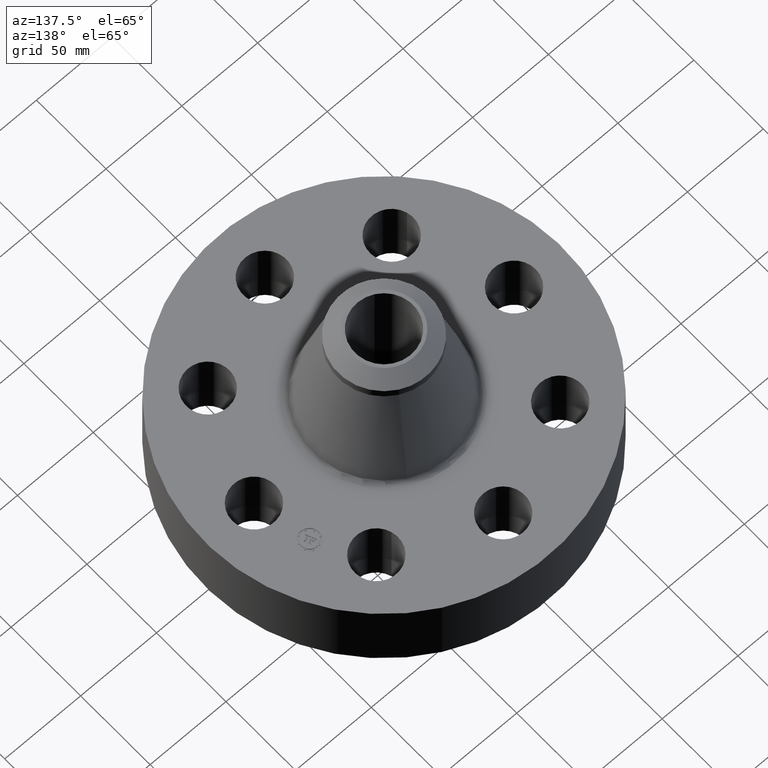
[diagram: clean part render]
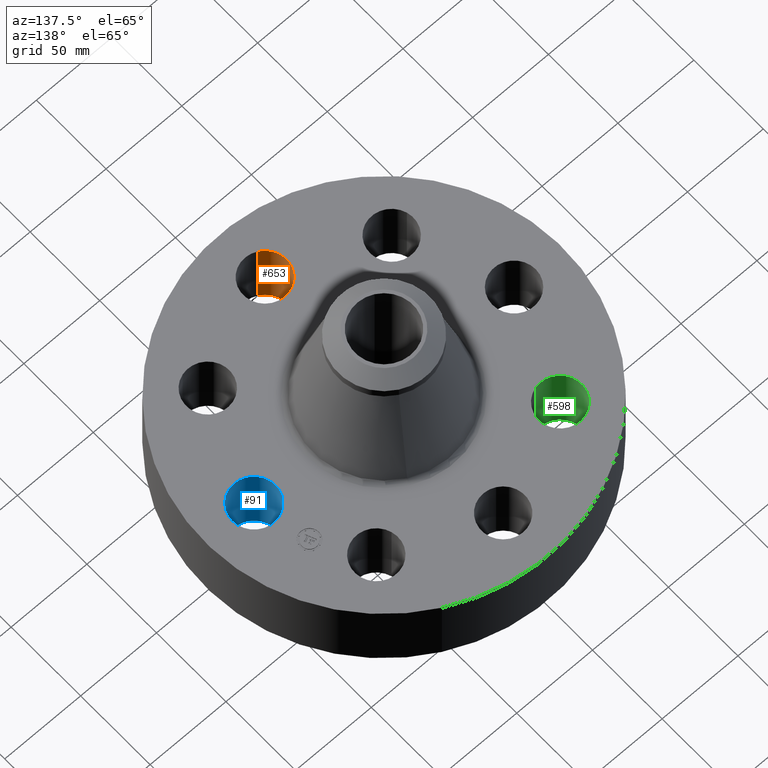
[diagram: same view with three faces highlighted in distinct colors, each labeled with its STEP entity id]
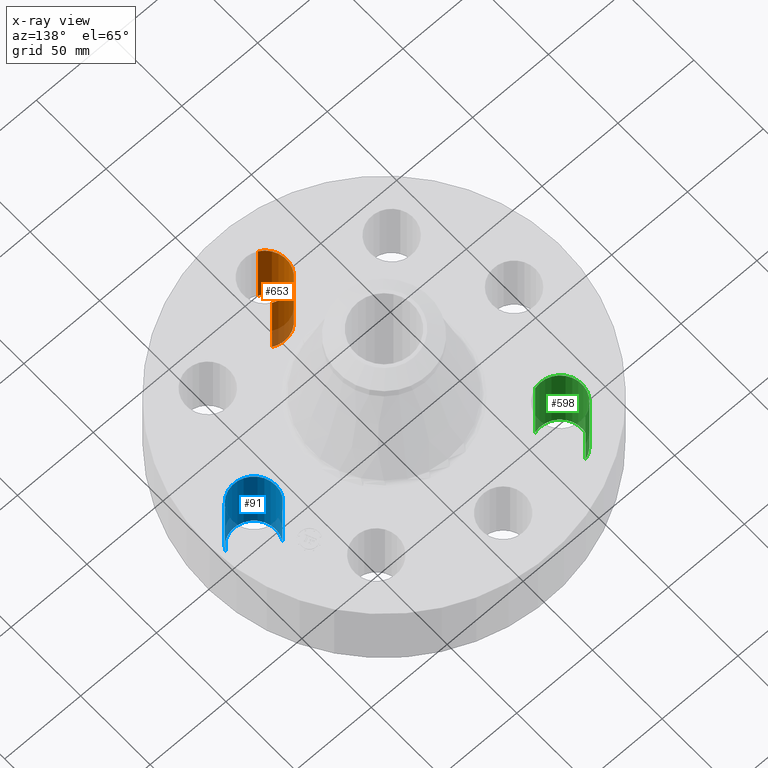
[diagram: x-ray of the same camera — body ghosted, the three highlighted faces saturated]
A machine part, auxiliary view with three faces highlighted in distinct colors.
The next image is the same camera in x-ray (body ghosted, the three faces saturated) — at least one of them is partly hidden behind the body in this view.
Their STEP definitions:

[orange] entity #653 — the highlighted cylindrical surface (edge-blend (fillet) strip) has radius 14.224 mm, axis along (0, -0, -1).
#470=AXIS2_PLACEMENT_3D('Circle Axis2P3D',#468,#469,$) ;
#614=AXIS2_PLACEMENT_3D('Cylinder Axis2P3D',#611,#612,#613) ;
#644=AXIS2_PLACEMENT_3D('Circle Axis2P3D',#642,#643,$) ;
#463=CARTESIAN_POINT('Vertex',(0.268478301619,-2.88355376535,0.)) ;
#465=CARTESIAN_POINT('Vertex',(-0.268478301619,-3.86644623467,0.)) ;
#468=CARTESIAN_POINT('Axis2P3D Location',(-6.2941777774E-016,-3.37500000001,0.)) ;
#611=CARTESIAN_POINT('Axis2P3D Location',(-3.52823321745E-016,-3.37500000001,1.99606299213)) ;
#616=CARTESIAN_POINT('Line Origine',(0.268478301619,-2.88355376535,1.)) ;
#620=CARTESIAN_POINT('Vertex',(0.268478301619,-2.88355376535,2.00000000001)) ;
#623=CARTESIAN_POINT('Line Origine',(-0.268478301619,-3.86644623467,1.)) ;
#627=CARTESIAN_POINT('Vertex',(-0.268478301619,-3.86644623467,2.00000000001)) ;
#642=CARTESIAN_POINT('Axis2P3D Location',(-3.52823321745E-016,-3.37500000001,2.00000000001)) ;
#469=DIRECTION('Axis2P3D Direction',(0.,0.,-0.0393700787402)) ;
#612=DIRECTION('Axis2P3D Direction',(0.,-0.,-0.0393700787402)) ;
#613=DIRECTION('Axis2P3D XDirection',(-0.0188750212049,-0.0345504945626,0.)) ;
#617=DIRECTION('Vector Direction',(0.,0.,-0.0393700787402)) ;
#624=DIRECTION('Vector Direction',(0.,0.,-0.0393700787402)) ;
#643=DIRECTION('Axis2P3D Direction',(0.,-0.,-0.0393700787402)) ;
#618=VECTOR('Line Direction',#617,0.0393700787402) ;
#625=VECTOR('Line Direction',#624,0.0393700787402) ;
#648=ORIENTED_EDGE('',*,*,#629,.F.) ;
#649=ORIENTED_EDGE('',*,*,#472,.T.) ;
#650=ORIENTED_EDGE('',*,*,#622,.T.) ;
#651=ORIENTED_EDGE('',*,*,#646,.F.) ;
#653=ADVANCED_FACE('PartBody',(#652),#615,.F.) ;
#471=CIRCLE('generated circle',#470,0.560000000002) ;
#645=CIRCLE('generated circle',#644,0.560000000002) ;
#615=CYLINDRICAL_SURFACE('generated cylinder',#614,0.560000000002) ;
#472=EDGE_CURVE('',#466,#464,#471,.T.) ;
#622=EDGE_CURVE('',#464,#621,#619,.F.) ;
#629=EDGE_CURVE('',#466,#628,#626,.F.) ;
#646=EDGE_CURVE('',#628,#621,#645,.T.) ;
#647=EDGE_LOOP('',(#648,#649,#650,#651)) ;
#652=FACE_OUTER_BOUND('',#647,.T.) ;
#619=LINE('Line',#616,#618) ;
#626=LINE('Line',#623,#625) ;
#464=VERTEX_POINT('',#463) ;
#466=VERTEX_POINT('',#465) ;
#621=VERTEX_POINT('',#620) ;
#628=VERTEX_POINT('',#627) ;

[blue] entity #91 — the highlighted cylindrical surface (edge-blend (fillet) strip) has radius 14.224 mm, axis along (0, -0, -1).
#38=AXIS2_PLACEMENT_3D('Cylinder Axis2P3D',#35,#36,#37) ;
#77=AXIS2_PLACEMENT_3D('Circle Axis2P3D',#75,#76,$) ;
#82=AXIS2_PLACEMENT_3D('Circle Axis2P3D',#80,#81,$) ;
#35=CARTESIAN_POINT('Axis2P3D Location',(3.37500000001,0.,1.99606299213)) ;
#40=CARTESIAN_POINT('Line Origine',(2.88355376535,0.268478301619,1.)) ;
#44=CARTESIAN_POINT('Vertex',(2.88355376535,0.268478301619,0.)) ;
#46=CARTESIAN_POINT('Vertex',(2.88355376535,0.268478301619,2.00000000001)) ;
#53=CARTESIAN_POINT('Vertex',(3.86644623467,-0.268478301619,0.)) ;
#56=CARTESIAN_POINT('Line Origine',(3.86644623467,-0.268478301619,1.)) ;
#60=CARTESIAN_POINT('Vertex',(3.86644623467,-0.268478301619,2.00000000001)) ;
#75=CARTESIAN_POINT('Axis2P3D Location',(3.37500000001,0.,0.)) ;
#80=CARTESIAN_POINT('Axis2P3D Location',(3.37500000001,0.,2.00000000001)) ;
#36=DIRECTION('Axis2P3D Direction',(0.,-0.,-0.0393700787402)) ;
#37=DIRECTION('Axis2P3D XDirection',(0.0345504945626,-0.0188750212049,0.)) ;
#41=DIRECTION('Vector Direction',(0.,0.,-0.0393700787402)) ;
#57=DIRECTION('Vector Direction',(0.,0.,-0.0393700787402)) ;
#76=DIRECTION('Axis2P3D Direction',(0.,-0.,-0.0393700787402)) ;
#81=DIRECTION('Axis2P3D Direction',(0.,-0.,-0.0393700787402)) ;
#42=VECTOR('Line Direction',#41,0.0393700787402) ;
#58=VECTOR('Line Direction',#57,0.0393700787402) ;
#86=ORIENTED_EDGE('',*,*,#62,.F.) ;
#87=ORIENTED_EDGE('',*,*,#79,.T.) ;
#88=ORIENTED_EDGE('',*,*,#48,.T.) ;
#89=ORIENTED_EDGE('',*,*,#84,.F.) ;
#91=ADVANCED_FACE('PartBody',(#90),#39,.F.) ;
#78=CIRCLE('generated circle',#77,0.560000000002) ;
#83=CIRCLE('generated circle',#82,0.560000000002) ;
#39=CYLINDRICAL_SURFACE('generated cylinder',#38,0.560000000002) ;
#48=EDGE_CURVE('',#45,#47,#43,.F.) ;
#62=EDGE_CURVE('',#54,#61,#59,.F.) ;
#79=EDGE_CURVE('',#54,#45,#78,.T.) ;
#84=EDGE_CURVE('',#61,#47,#83,.T.) ;
#85=EDGE_LOOP('',(#86,#87,#88,#89)) ;
#90=FACE_OUTER_BOUND('',#85,.T.) ;
#43=LINE('Line',#40,#42) ;
#59=LINE('Line',#56,#58) ;
#45=VERTEX_POINT('',#44) ;
#47=VERTEX_POINT('',#46) ;
#54=VERTEX_POINT('',#53) ;
#61=VERTEX_POINT('',#60) ;

[green] entity #598 — the highlighted cylindrical surface (edge-blend (fillet) strip) has radius 14.224 mm, axis along (0, 0, -1).
#515=AXIS2_PLACEMENT_3D('Circle Axis2P3D',#513,#514,$) ;
#571=AXIS2_PLACEMENT_3D('Cylinder Axis2P3D',#568,#569,#570) ;
#589=AXIS2_PLACEMENT_3D('Circle Axis2P3D',#587,#588,$) ;
#513=CARTESIAN_POINT('Axis2P3D Location',(-2.38648538651,2.38648538651,0.)) ;
#517=CARTESIAN_POINT('Vertex',(-2.22882324907,1.84913759372,0.)) ;
#519=CARTESIAN_POINT('Vertex',(-2.54414752395,2.92383317931,0.)) ;
#568=CARTESIAN_POINT('Axis2P3D Location',(-2.38648538651,2.38648538651,1.99606299213)) ;
#573=CARTESIAN_POINT('Line Origine',(-2.22882324907,1.84913759372,1.)) ;
#577=CARTESIAN_POINT('Vertex',(-2.22882324907,1.84913759372,2.00000000001)) ;
#580=CARTESIAN_POINT('Line Origine',(-2.54414752395,2.92383317931,1.)) ;
#584=CARTESIAN_POINT('Vertex',(-2.54414752395,2.92383317931,2.00000000001)) ;
#587=CARTESIAN_POINT('Axis2P3D Location',(-2.38648538651,2.38648538651,2.00000000001)) ;
#514=DIRECTION('Axis2P3D Direction',(0.,0.,-0.0393700787402)) ;
#569=DIRECTION('Axis2P3D Direction',(0.,0.,-0.0393700787402)) ;
#570=DIRECTION('Axis2P3D XDirection',(-0.0110842335096,0.0377775444876,0.)) ;
#574=DIRECTION('Vector Direction',(0.,0.,-0.0393700787402)) ;
#581=DIRECTION('Vector Direction',(0.,0.,-0.0393700787402)) ;
#588=DIRECTION('Axis2P3D Direction',(0.,0.,-0.0393700787402)) ;
#575=VECTOR('Line Direction',#574,0.0393700787402) ;
#582=VECTOR('Line Direction',#581,0.0393700787402) ;
#593=ORIENTED_EDGE('',*,*,#579,.F.) ;
#594=ORIENTED_EDGE('',*,*,#521,.T.) ;
#595=ORIENTED_EDGE('',*,*,#586,.T.) ;
#596=ORIENTED_EDGE('',*,*,#591,.F.) ;
#598=ADVANCED_FACE('PartBody',(#597),#572,.F.) ;
#516=CIRCLE('generated circle',#515,0.560000000002) ;
#590=CIRCLE('generated circle',#589,0.560000000002) ;
#572=CYLINDRICAL_SURFACE('generated cylinder',#571,0.560000000002) ;
#521=EDGE_CURVE('',#518,#520,#516,.T.) ;
#579=EDGE_CURVE('',#518,#578,#576,.F.) ;
#586=EDGE_CURVE('',#520,#585,#583,.F.) ;
#591=EDGE_CURVE('',#578,#585,#590,.T.) ;
#592=EDGE_LOOP('',(#593,#594,#595,#596)) ;
#597=FACE_OUTER_BOUND('',#592,.T.) ;
#576=LINE('Line',#573,#575) ;
#583=LINE('Line',#580,#582) ;
#518=VERTEX_POINT('',#517) ;
#520=VERTEX_POINT('',#519) ;
#578=VERTEX_POINT('',#577) ;
#585=VERTEX_POINT('',#584) ;